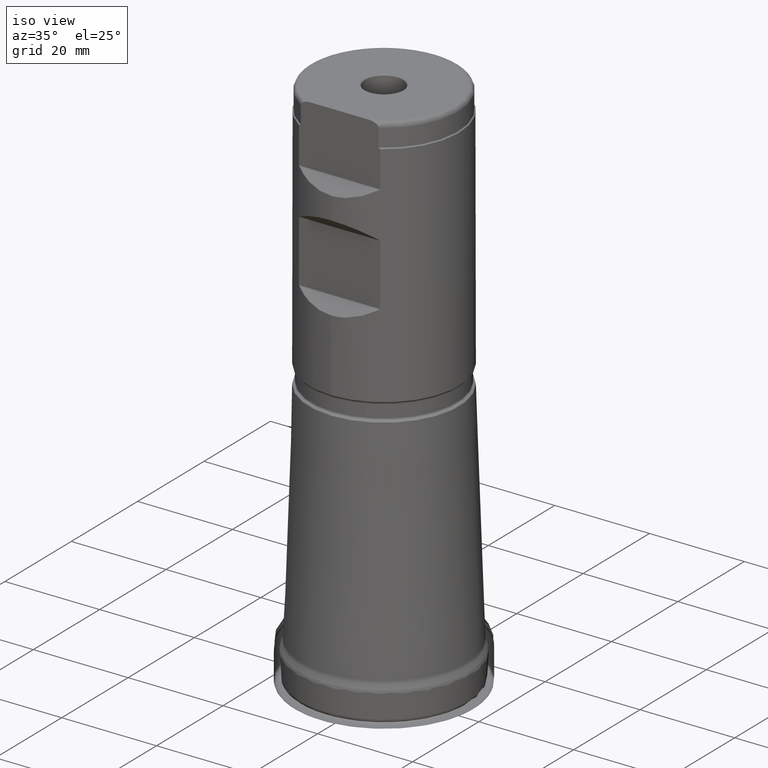
[diagram: clean part render]
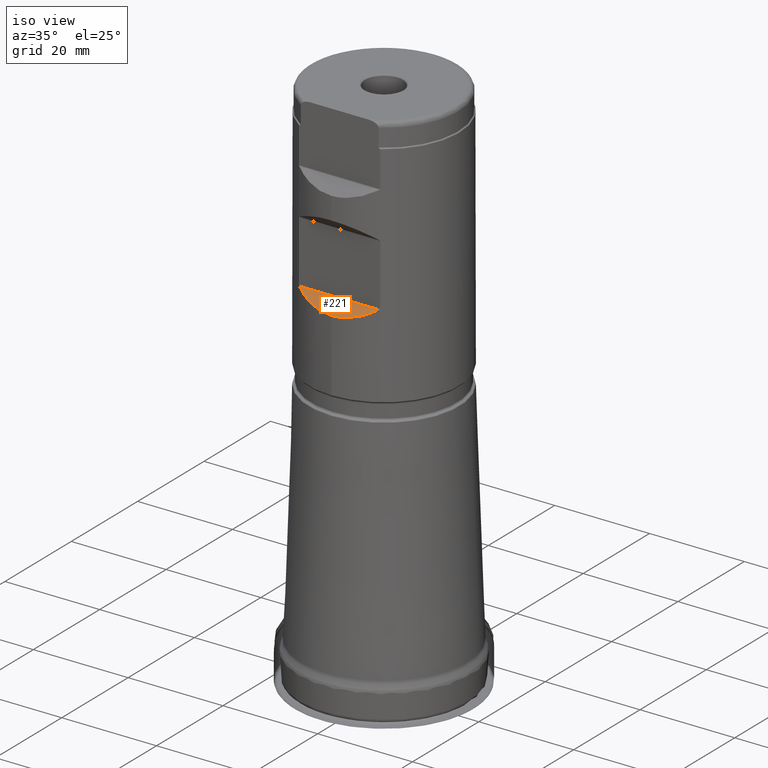
[diagram: same view with one face highlighted and labeled with its STEP entity id]
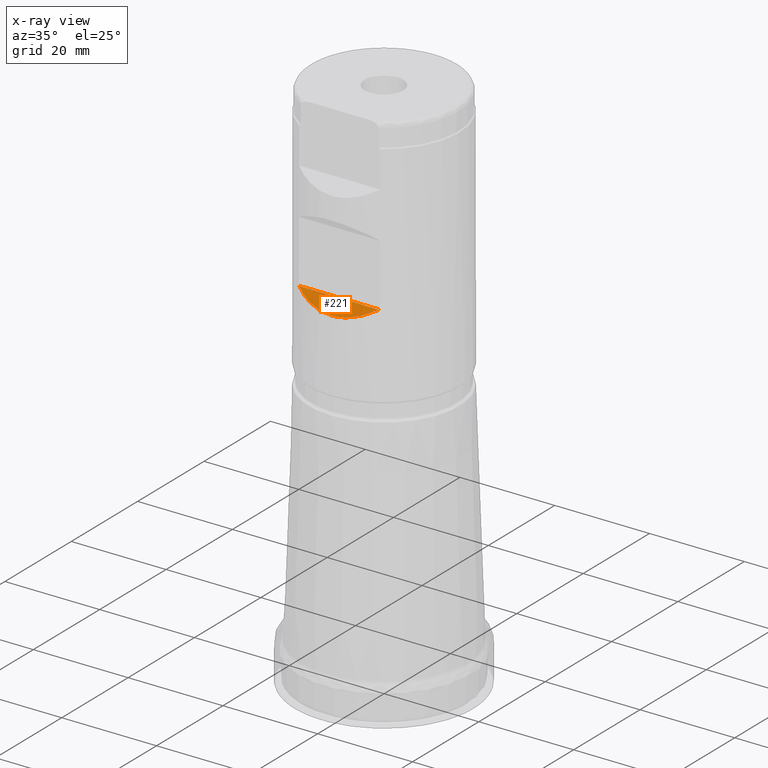
[diagram: x-ray of the same camera — body ghosted, the highlighted face saturated]
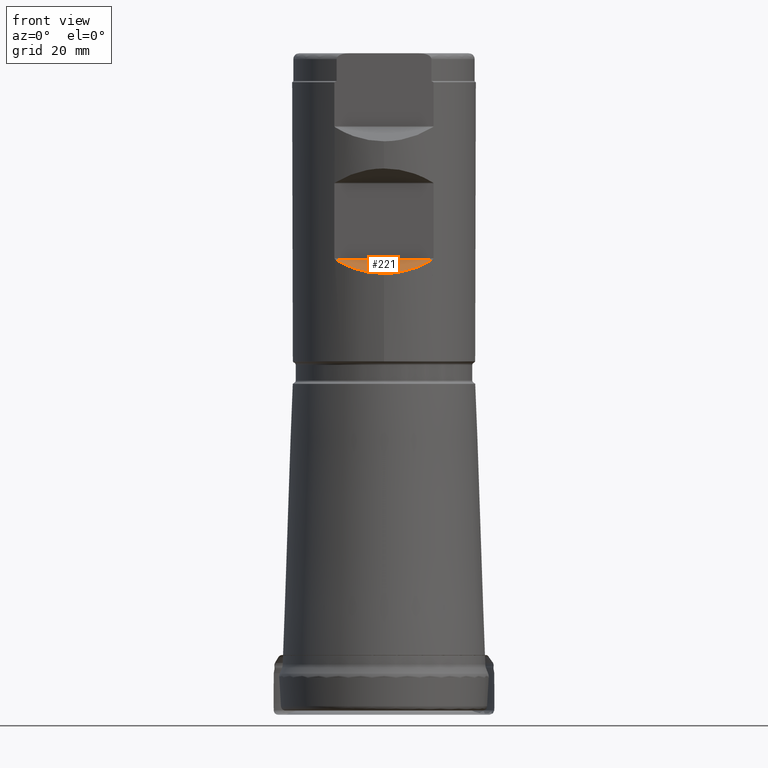
[diagram: same view with one face highlighted and labeled with its STEP entity id]
A machine part, iso view. The second image highlights one B-rep face of the part: STEP entity #221.
The next image is the same camera in x-ray: the body ghosted, the highlighted face saturated — about 0% of this face is hidden behind the body in this view.
A second angle (front view) of the same face is appended — the face is thin or edge-on in the first view.
In plain terms, the highlighted planar face has unit normal (0, -0.7071, 0.7071).
Its self-contained STEP definition (entity closure, byte-faithful):
#184=PLANE('',#939);
#193=FACE_OUTER_BOUND('',#428,.T.);
#221=ADVANCED_FACE('',(#193),#184,.T.);
#274=LINE('',#1620,#287);
#287=VECTOR('',#1090,1.);
#289=ELLIPSE('',#891,22.4506403026729,15.875);
#428=EDGE_LOOP('',(#571,#572));
#571=ORIENTED_EDGE('',*,*,#754,.T.);
#572=ORIENTED_EDGE('',*,*,#713,.F.);
#646=VERTEX_POINT('',#1465);
#647=VERTEX_POINT('',#1467);
#713=EDGE_CURVE('',#646,#647,#289,.T.);
#754=EDGE_CURVE('',#646,#647,#274,.T.);
#891=AXIS2_PLACEMENT_3D('',#1466,#983,#984);
#939=AXIS2_PLACEMENT_3D('',#1621,#1091,#1092);
#983=DIRECTION('',(-4.32978028117746E-17,0.707106781186546,-0.707106781186549));
#984=DIRECTION('',(-4.32978028117747E-17,0.707106781186549,0.707106781186546));
#1090=DIRECTION('',(-1.,7.17309531289991E-32,6.12323399573676E-17));
#1091=DIRECTION('',(4.32978028117746E-17,-0.707106781186546,0.707106781186549));
#1092=DIRECTION('',(4.16333634234434E-17,0.707106781186549,0.707106781186546));
#1465=CARTESIAN_POINT('',(8.43243242797532,-13.4502679656439,78.687057034356));
#1466=CARTESIAN_POINT('',(0.,1.07934763649533E-13,92.137325));
#1467=CARTESIAN_POINT('',(-8.43243242797532,-13.4502679656439,78.687057034356));
#1620=CARTESIAN_POINT('',(-17.5,-13.4502679656439,78.687057034356));
#1621=CARTESIAN_POINT('',(-17.5,-13.3623999999999,78.774925));